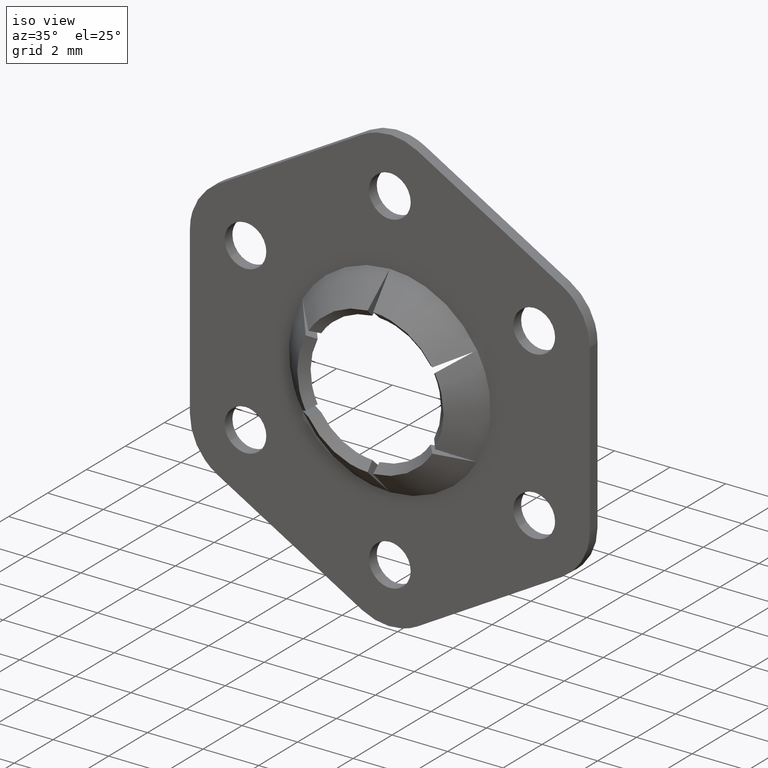
[diagram: clean part render]
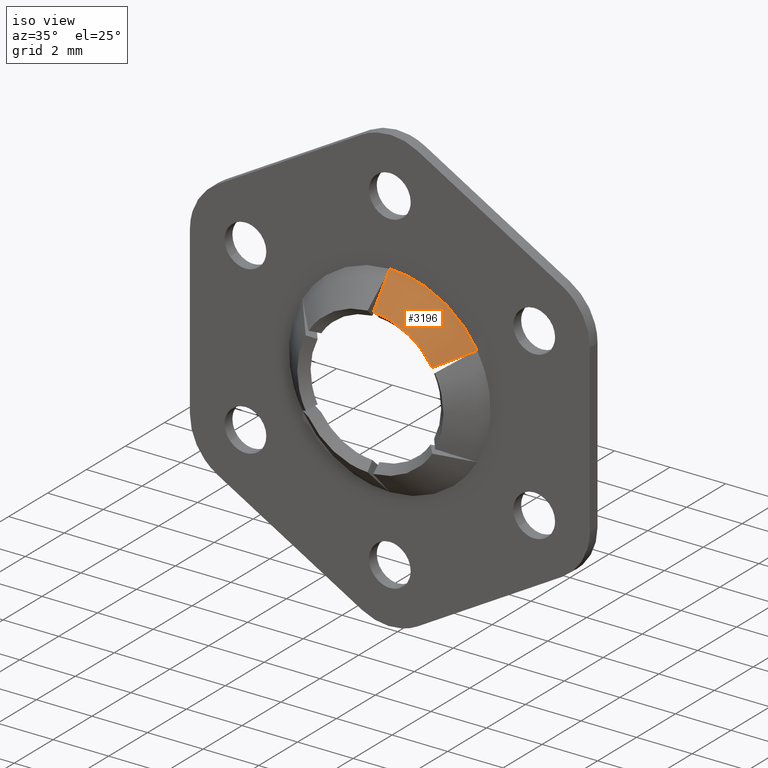
[diagram: same view with one face highlighted and labeled with its STEP entity id]
A machine part, iso view. The second image highlights one B-rep face of the part: STEP entity #3196.
In plain terms, the highlighted face is a freeform B-spline surface patch.
Its self-contained STEP definition (entity closure, byte-faithful):
#1631=CARTESIAN_POINT('',(3.146134076949664,-0.400000000000395,1.816421356233095));
#1632=VERTEX_POINT('',#1631);
#1849=CARTESIAN_POINT('',(3.382169E-013,-0.399999999999906,3.632842712467350));
#1850=VERTEX_POINT('',#1849);
#2921=CARTESIAN_POINT('',(0.100000000000867,-1.399999999999550,2.630942939060295));
#2922=VERTEX_POINT('',#2921);
#2928=CARTESIAN_POINT('',(0.100000000000867,-1.399999999999550,2.630942939060295));
#2929=CARTESIAN_POINT('',(0.066623220560680,-1.067107124731209,2.965344816640072));
#2930=CARTESIAN_POINT('',(0.033301917109389,-0.733651832054273,3.299190880412797));
#2931=CARTESIAN_POINT('',(2.593463E-013,-0.399999999999910,3.632842712467346));
#2932=QUASI_UNIFORM_CURVE('',3,(#2928,#2929,#2930,#2931),.UNSPECIFIED.,.F.,.U.);
#2933=EDGE_CURVE('',#2922,#1850,#2932,.T.);
#2953=CARTESIAN_POINT('',(2.228463421133120,-1.399999999999550,1.402074009909270));
#2954=VERTEX_POINT('',#2953);
#2955=CARTESIAN_POINT('',(3.146134076949664,-0.400000000000395,1.816421356233095));
#2956=CARTESIAN_POINT('',(2.840532155816695,-0.733651832054599,1.678435746417282));
#2957=CARTESIAN_POINT('',(2.534752331910475,-1.067107124731375,1.540369809807199));
#2958=CARTESIAN_POINT('',(2.228463421133120,-1.399999999999551,1.402074009909272));
#2959=QUASI_UNIFORM_CURVE('',3,(#2955,#2956,#2957,#2958),.UNSPECIFIED.,.F.,.U.);
#2960=EDGE_CURVE('',#1632,#2954,#2959,.T.);
#3096=CARTESIAN_POINT('',(3.146134076949664,-0.400000000000395,1.816421356233095));
#3097=CARTESIAN_POINT('',(3.061928021948587,-0.400000000000356,1.962278657691260));
#3098=CARTESIAN_POINT('',(2.850985798727778,-0.400000000000272,2.275199222002504));
#3099=CARTESIAN_POINT('',(2.438176244917971,-0.400000000000155,2.719618473691615));
#3100=CARTESIAN_POINT('',(1.928190081777012,-0.400000000000041,3.101077722528619));
#3101=CARTESIAN_POINT('',(1.439847562257045,-0.399999999999996,3.346872475073112));
#3102=CARTESIAN_POINT('',(0.952802996311615,-0.399999999999933,3.516657618914522));
#3103=CARTESIAN_POINT('',(0.495353588695665,-0.399999999999911,3.611548305173089));
#3104=CARTESIAN_POINT('',(0.148604815143277,-0.399999999999906,3.632845140506402));
#3105=CARTESIAN_POINT('',(3.382169E-013,-0.399999999999906,3.632842712467350));
#3106=B_SPLINE_CURVE_WITH_KNOTS('',3,(#3096,#3097,#3098,#3099,#3100,#3101,#3102,#3103,#3104,#3105),.UNSPECIFIED.,.F.,.U.,(4,1,1,1,1,1,1,4),(3.269172E-009,0.505259901276792,1.129406609105069,1.812997930241288,2.407417200527365,2.764071869468125,3.358498155023561,3.804314601770304),.UNSPECIFIED.);
#3107=EDGE_CURVE('',#1632,#1850,#3106,.T.);
#3165=CARTESIAN_POINT('',(2.309459710101273,-1.424999999999541,1.211296602978376));
#3166=CARTESIAN_POINT('',(3.239874760183092,-0.374374999999915,1.699293247645816));
#3167=CARTESIAN_POINT('',(1.537778667326610,-1.424999999999541,2.682584702816991));
#3168=CARTESIAN_POINT('',(2.157305567716961,-0.374374999999915,3.763321106099272));
#3169=CARTESIAN_POINT('',(-0.121787695447162,-1.424999999999541,2.604997383915324));
#3170=CARTESIAN_POINT('',(-0.170852463394056,-0.374374999999915,3.654476082685218));
#3178=(BOUNDED_SURFACE()B_SPLINE_SURFACE(1,2,((#3165,#3167,#3169),(#3166,#3168,#3170)),.UNSPECIFIED.,.F.,.F.,.U.)B_SPLINE_SURFACE_WITH_KNOTS((2,2),(3,3),(0.0,1.0),(0.0,4.265384378392600),.UNSPECIFIED.)GEOMETRIC_REPRESENTATION_ITEM()RATIONAL_B_SPLINE_SURFACE(((1.0,0.843391445812886,1.0),(1.0,0.843391445812886,1.0)))REPRESENTATION_ITEM('')SURFACE());
#3179=ORIENTED_EDGE('',*,*,#2933,.F.);
#3180=CARTESIAN_POINT('',(2.228463421133120,-1.399999999999550,1.402074009909270));
#3181=CARTESIAN_POINT('',(2.161090262583603,-1.399999999999549,1.509164468581519));
#3182=CARTESIAN_POINT('',(1.999012527022897,-1.399999999999552,1.729753389554975));
#3183=CARTESIAN_POINT('',(1.728658122482927,-1.399999999999548,1.998048777551766));
#3184=CARTESIAN_POINT('',(1.401616574867352,-1.399999999999556,2.240232024254772));
#3185=CARTESIAN_POINT('',(1.077145397025757,-1.399999999999551,2.413078346893840));
#3186=CARTESIAN_POINT('',(0.630829724584158,-1.399999999999547,2.571708444723944));
#3187=CARTESIAN_POINT('',(0.312943630991654,-1.399999999999566,2.622903550704010));
#3188=CARTESIAN_POINT('',(0.100000000000867,-1.399999999999550,2.630942939060295));
#3189=B_SPLINE_CURVE_WITH_KNOTS('',3,(#3180,#3181,#3182,#3183,#3184,#3185,#3186,#3187,#3188),.UNSPECIFIED.,.F.,.U.,(4,1,1,1,1,1,4),(4.706499E-009,0.379563642555625,0.819061050399326,1.138693227058599,1.598163372570110,1.917798345100164,2.557064456628110),.UNSPECIFIED.);
#3190=EDGE_CURVE('',#2954,#2922,#3189,.T.);
#3191=ORIENTED_EDGE('',*,*,#3190,.F.);
#3192=ORIENTED_EDGE('',*,*,#2960,.F.);
#3193=ORIENTED_EDGE('',*,*,#3107,.T.);
#3194=EDGE_LOOP('',(#3179,#3191,#3192,#3193));
#3195=FACE_OUTER_BOUND('',#3194,.T.);
#3196=ADVANCED_FACE('',(#3195),#3178,.T.);